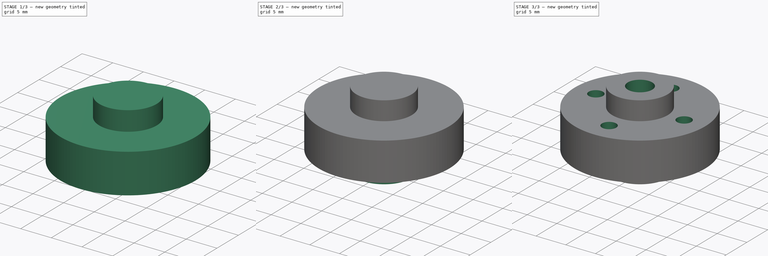
[diagram: build sequence overview — one tinted view per stage of 3, left to right]
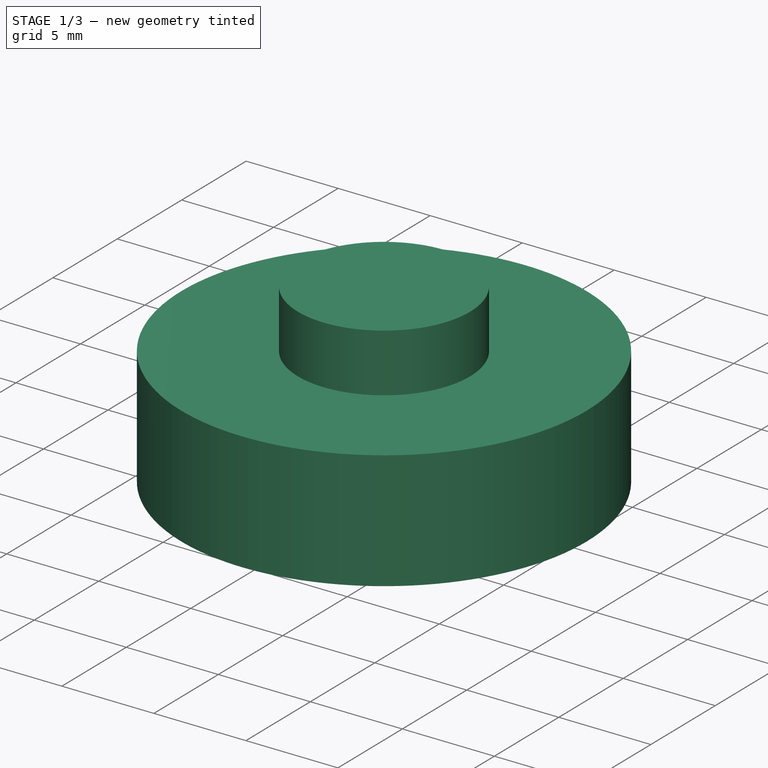
[diagram: stage 1 of 3 — iso view after this stage's code; geometry added in this stage tinted green]
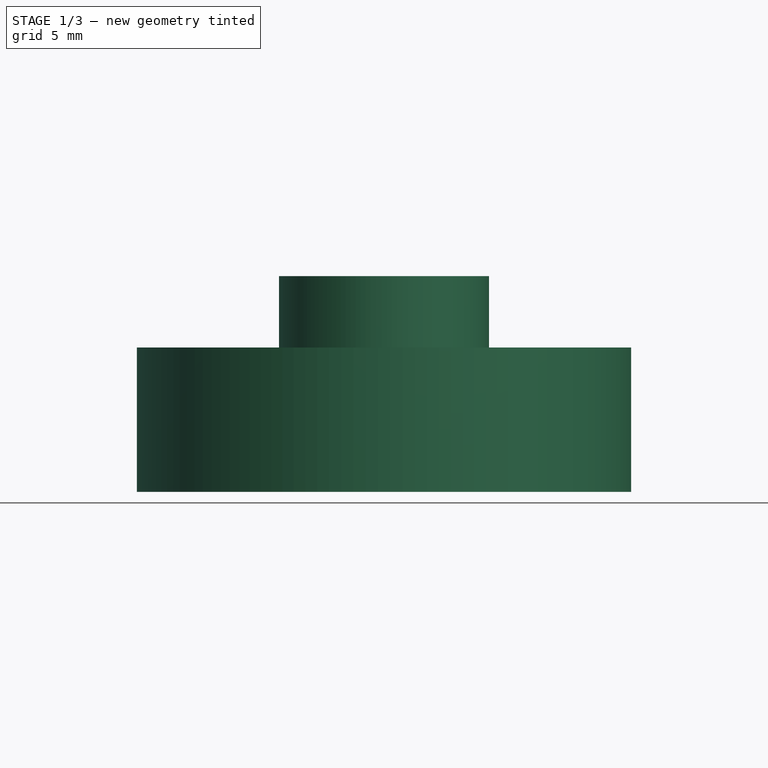
[diagram: stage 1 of 3 — front view after this stage's code; geometry added in this stage tinted green]
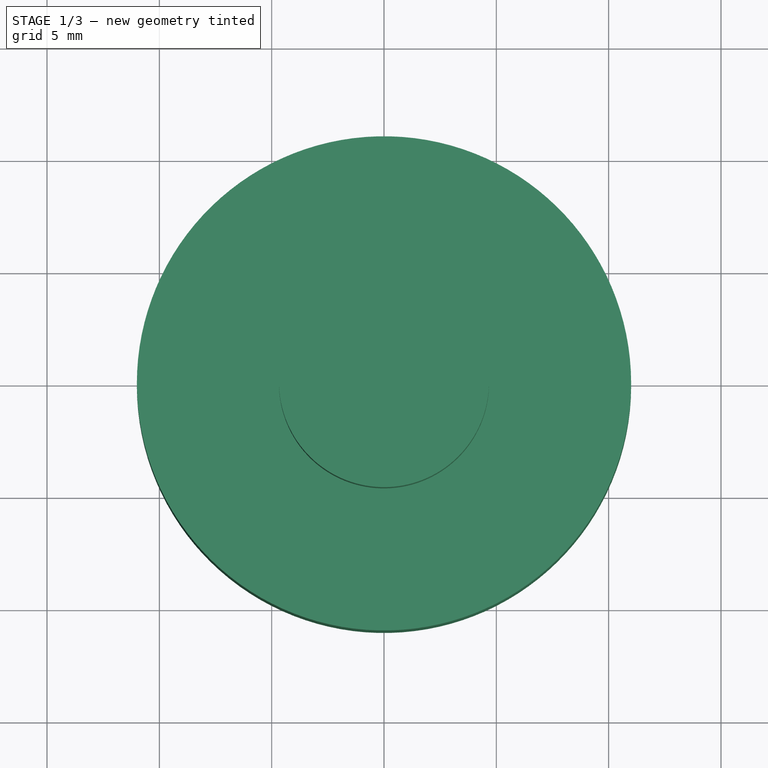
[diagram: stage 1 of 3 — top view after this stage's code; geometry added in this stage tinted green]
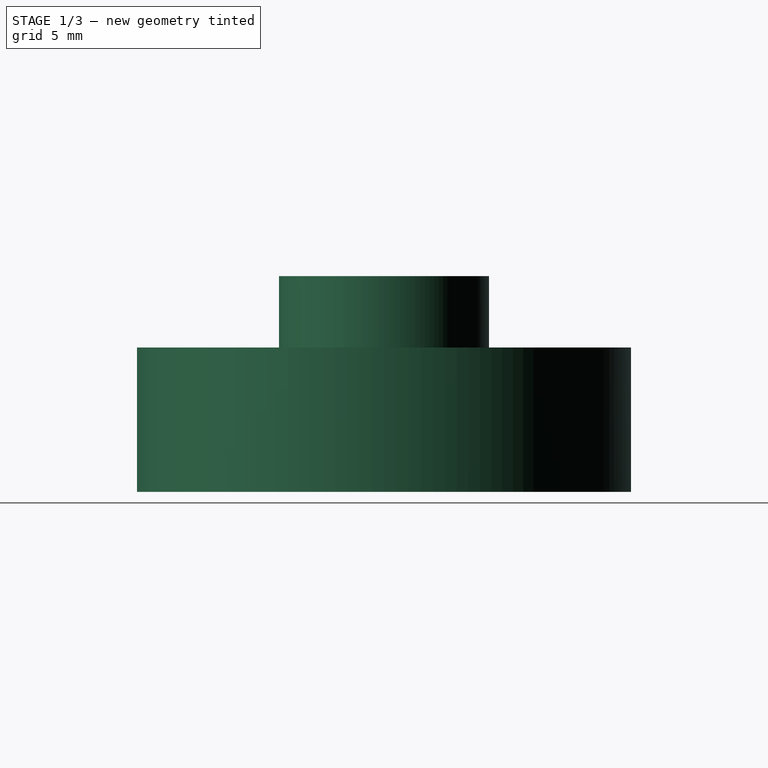
[diagram: stage 1 of 3 — right view after this stage's code; geometry added in this stage tinted green]
FCSTD DOCUMENT  (FreeCAD 0.15R4671 (Git))
Label: hub
License: All rights reserved
LicenseURL: http://en.wikipedia.org/wiki/All_rights_reserved
objects: Sketcher::SketchObject×5, PartDesign::Pad×3, PartDesign::Pocket×2
note: 15 computed .brp shape members not serialized (recipe doc carries the construction recipe); baked Part::Feature solids carry a one-line shape summary decoded from their .brp

FEATURE [Sketcher::SketchObject] Sketch
  sketch-geometry (1):
    g0: Circle CenterX=0 CenterY=0 CenterZ=0 NormalX=0 NormalY=0 NormalZ=1 Radius=11.0007
  constraints (2):
    c: Coincident(g0,g-1)
    c: Radius(g0) = 11.0007
FEATURE [PartDesign::Pad] Pad
  Length = 6.4262
  Length2 = 100
  Sketch = -> Sketch
  Type = 0
FEATURE [Sketcher::SketchObject] Sketch001
  Placement = pos=(0,0,6.4262) rot=(0,0,1;0rad)
  Support = -> Pad [Face3]
  sketch-geometry (1):
    g0: Circle CenterX=0 CenterY=0 CenterZ=0 NormalX=0 NormalY=0 NormalZ=1 Radius=4.67614
  constraints (2):
    c: Coincident(g0,g-1)
    c: Radius(g0) = 4.67614
FEATURE [PartDesign::Pad] Pad001
  Length = 3.175
  Length2 = 100
  Sketch = -> Sketch001
  Type = 0
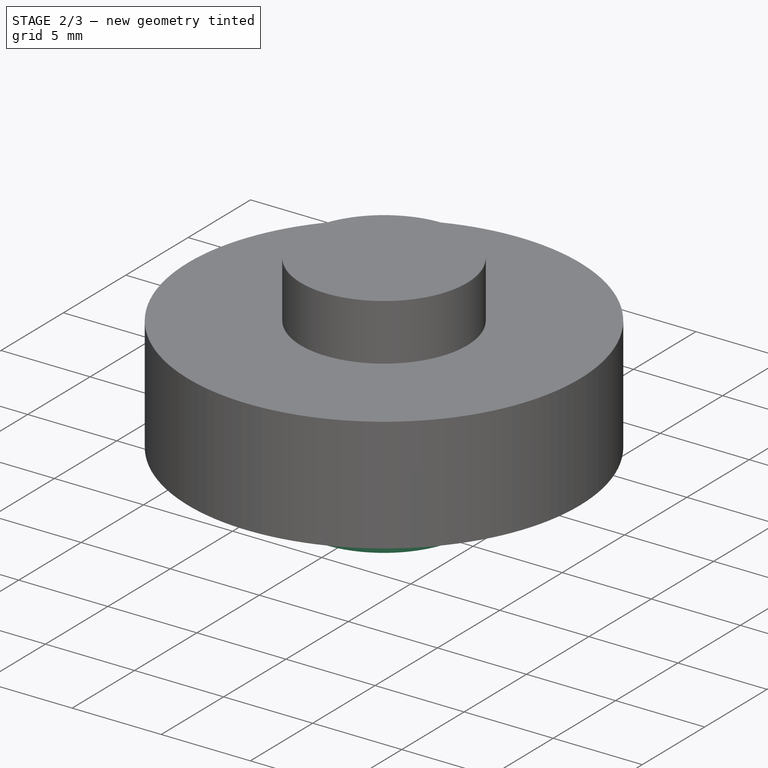
[diagram: stage 2 of 3 — iso view after this stage's code; geometry added in this stage tinted green]
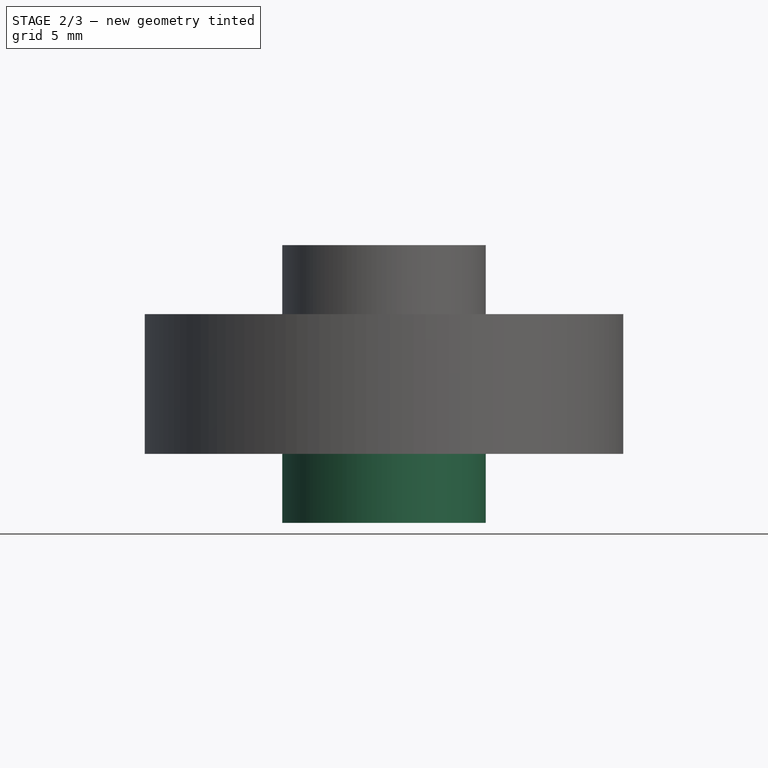
[diagram: stage 2 of 3 — front view after this stage's code; geometry added in this stage tinted green]
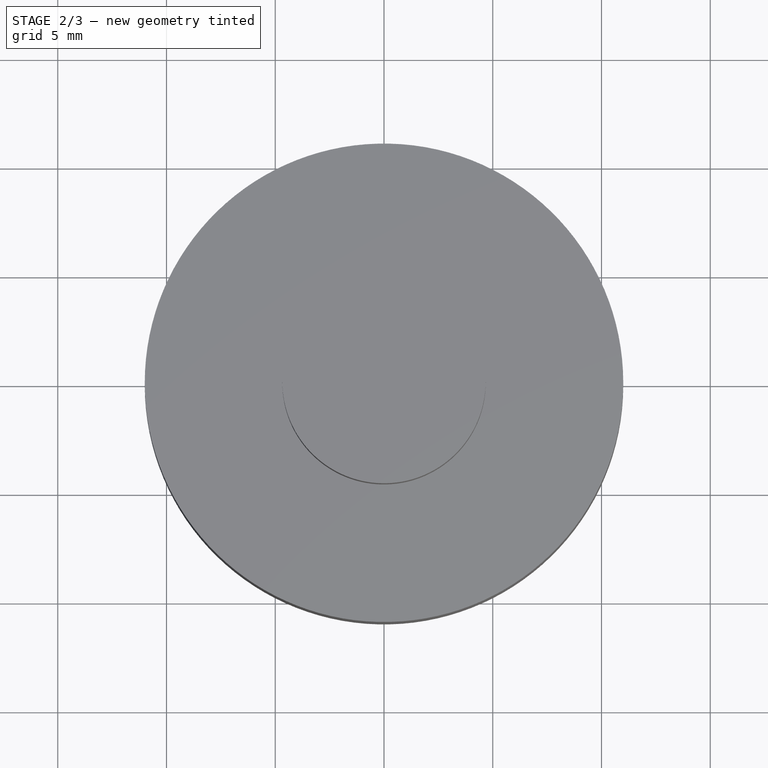
[diagram: stage 2 of 3 — top view after this stage's code; geometry added in this stage tinted green]
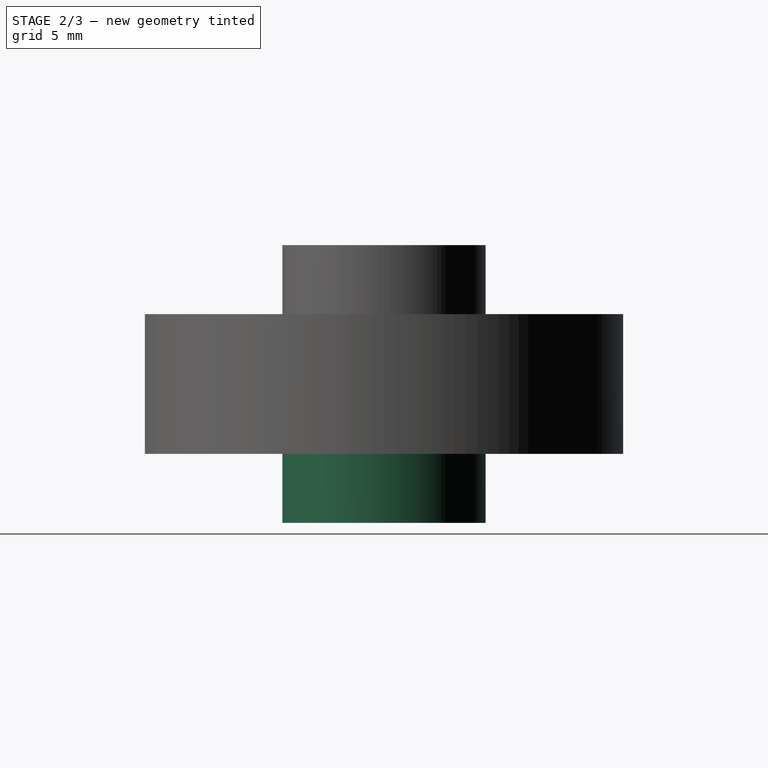
[diagram: stage 2 of 3 — right view after this stage's code; geometry added in this stage tinted green]
FEATURE [Sketcher::SketchObject] Sketch002
  Placement = pos=(0,0,0) rot=(1,0,0;3.14159rad)
  Support = -> Pad001 [Face2]
  sketch-geometry (1):
    g0: Circle CenterX=0 CenterY=0 CenterZ=0 NormalX=0 NormalY=0 NormalZ=1 Radius=4.67614
  constraints (2):
    c: Coincident(g0,g-1)
    c: Radius(g0) = 4.67614
FEATURE [PartDesign::Pad] Pad002
  Length = 3.175
  Length2 = 100
  Sketch = -> Sketch002
  Type = 0
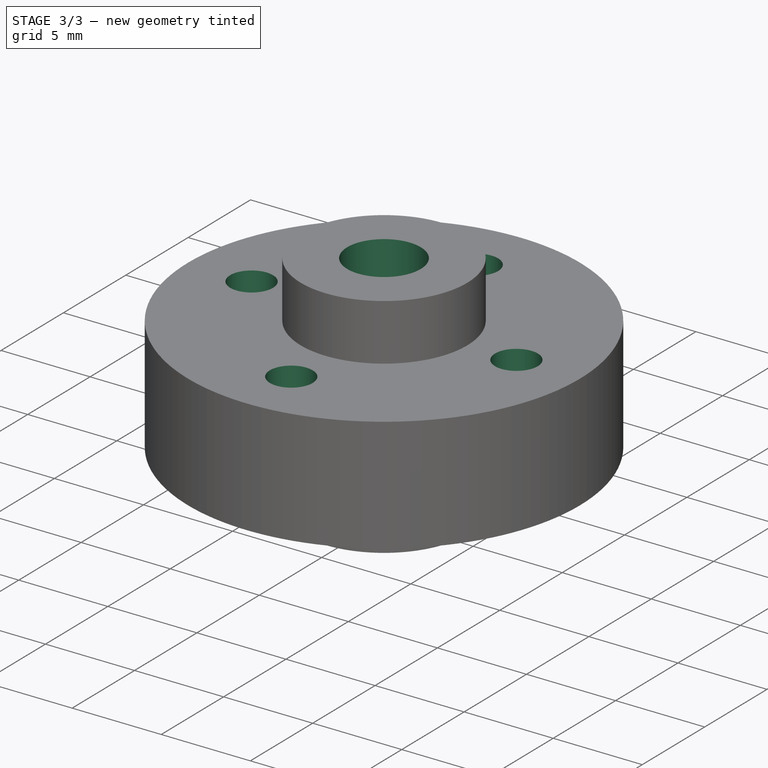
[diagram: stage 3 of 3 — iso view after this stage's code; geometry added in this stage tinted green]
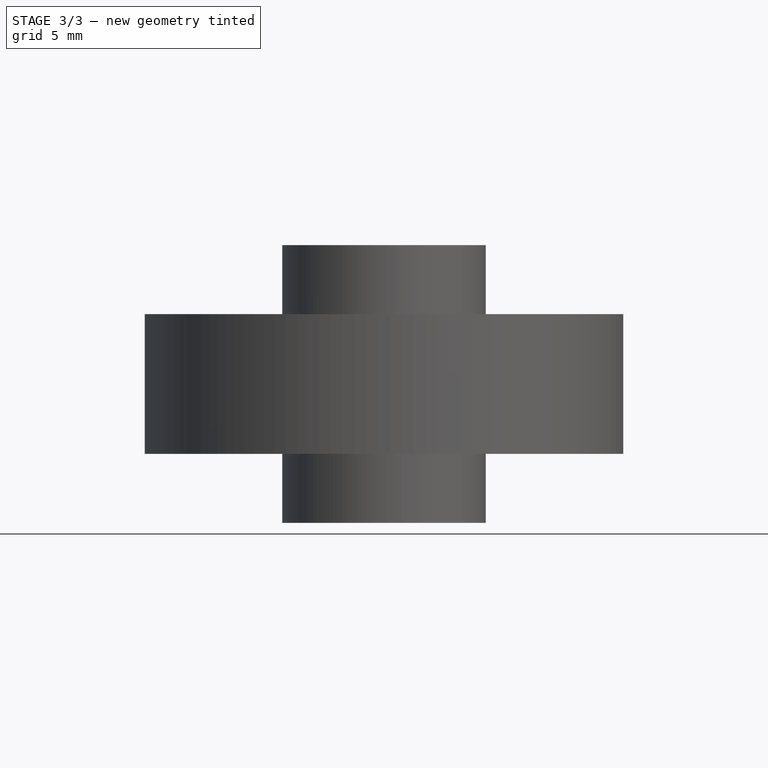
[diagram: stage 3 of 3 — front view after this stage's code; geometry added in this stage tinted green]
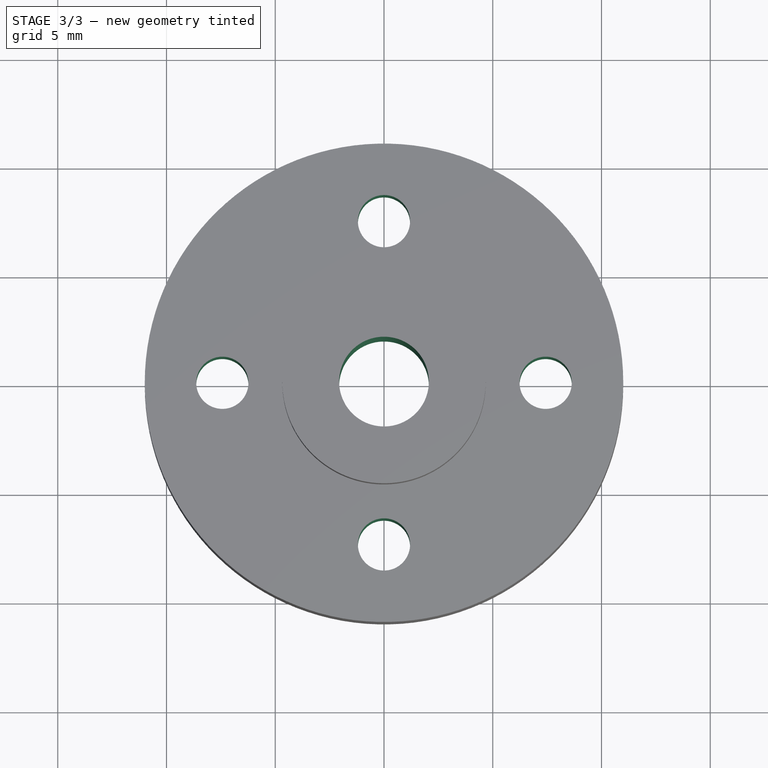
[diagram: stage 3 of 3 — top view after this stage's code; geometry added in this stage tinted green]
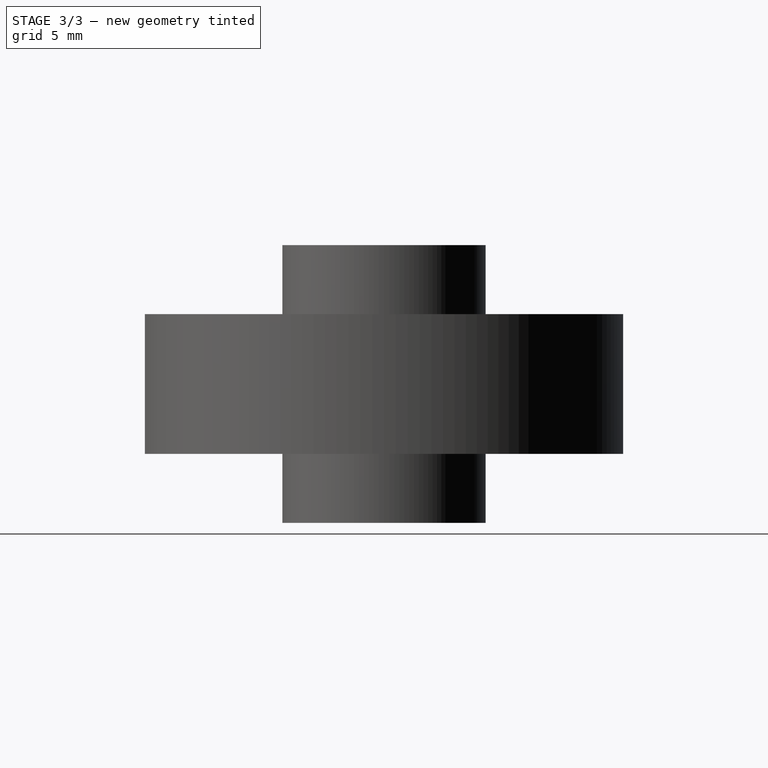
[diagram: stage 3 of 3 — right view after this stage's code; geometry added in this stage tinted green]
FEATURE [Sketcher::SketchObject] Sketch003
  Placement = pos=(0,0,-3.175) rot=(1,0,0;3.14159rad)
  Support = -> Pad002 [Face6]
  sketch-geometry (1):
    g0: Circle CenterX=0 CenterY=0 CenterZ=0 NormalX=0 NormalY=0 NormalZ=1 Radius=2.06375
  constraints (2):
    c: Coincident(g0,g-1)
    c: Radius(g0) = 2.06375
FEATURE [PartDesign::Pocket] Pocket
  Length = 4.99999
  Sketch = -> Sketch003
  Type = 1
FEATURE [Sketcher::SketchObject] Sketch004
  Placement = pos=(0,0,0) rot=(1,0,0;3.14159rad)
  Support = -> Pocket [Face2]
  sketch-geometry (4):
    g0: Circle CenterX=7.43331 CenterY=0 CenterZ=0 NormalX=0 NormalY=0 NormalZ=1 Radius=1.20015
    g1: Circle CenterX=0 CenterY=-7.43331 CenterZ=0 NormalX=0 NormalY=0 NormalZ=1 Radius=1.20015
    g2: Circle CenterX=0 CenterY=7.43331 CenterZ=0 NormalX=0 NormalY=0 NormalZ=1 Radius=1.20015
    g3: Circle CenterX=-7.43331 CenterY=0 CenterZ=0 NormalX=0 NormalY=0 NormalZ=1 Radius=1.20015
  constraints (12):
    c: Radius(g1) = 1.20015
    c: Equal(g1,g3)
    c: Equal(g1,g2)
    c: Equal(g1,g0)
    c: DistanceX(g-1,g2) = 0
    c: DistanceX(g-1,g1) = 0
    c: DistanceY(g-1,g0) = 0
    c: DistanceY(g-1,g3) = 0
    c: DistanceX(g-1,g0) = 7.43331
    c: DistanceX(g-1,g3) = -7.43331
    c: DistanceY(g-1,g2) = 7.43331
    c: DistanceY(g-1,g1) = -7.43331
FEATURE [PartDesign::Pocket] Pocket001
  Length = 4.99999
  Sketch = -> Sketch004
  Type = 1
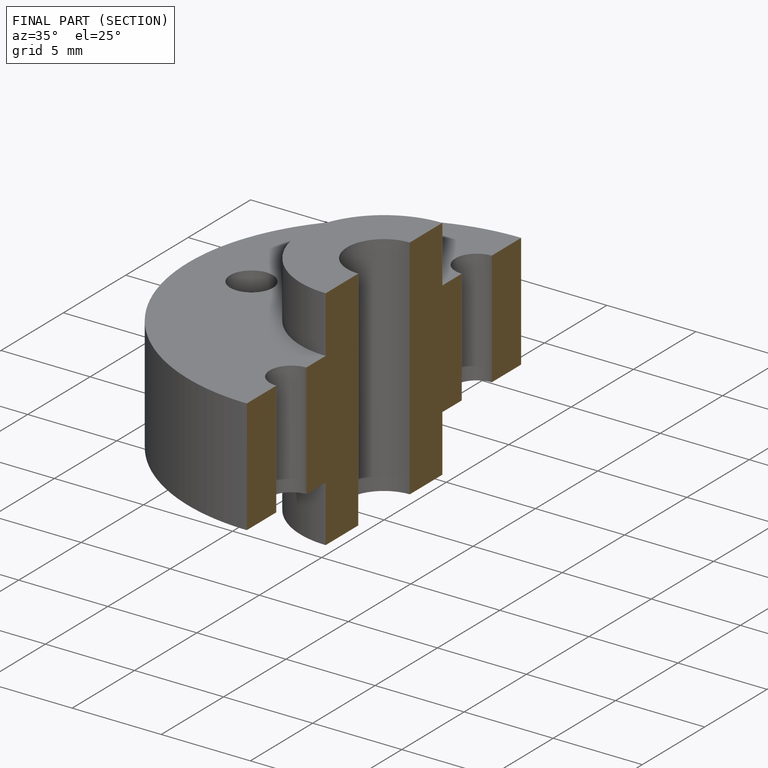
[diagram: finished part — half-section view (interior)]
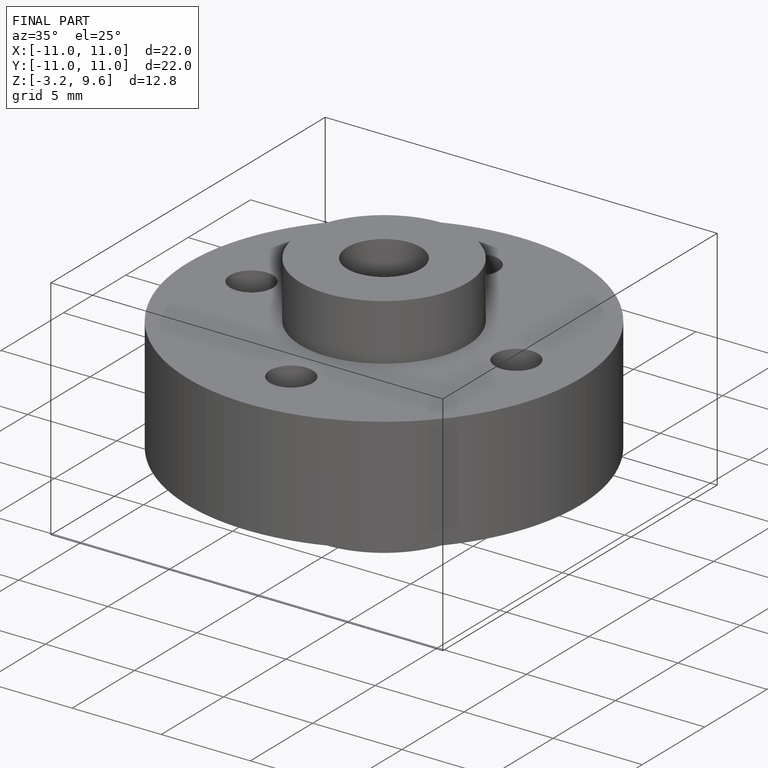
[diagram: finished part — iso view with bounding-box wireframe]
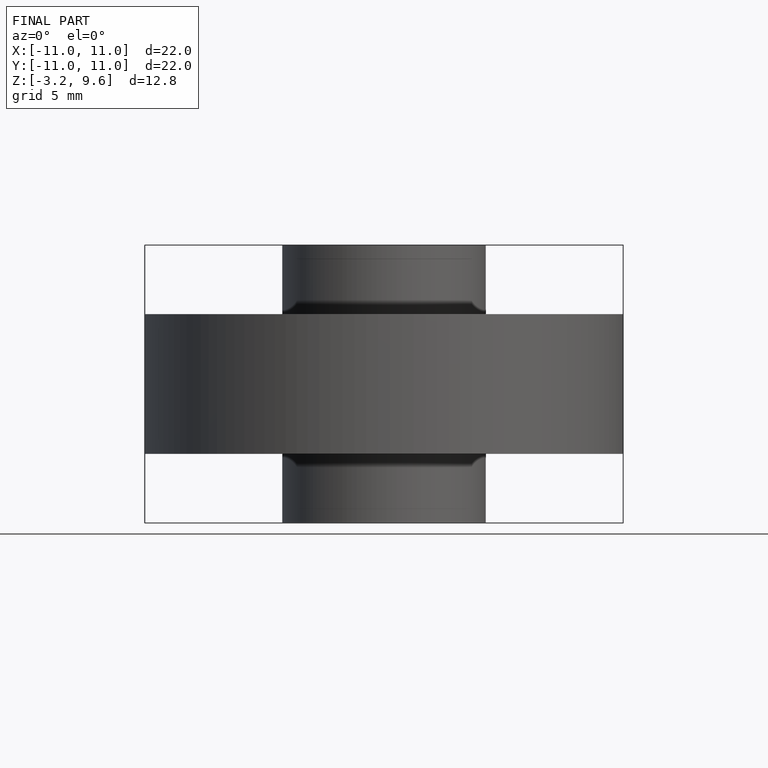
[diagram: finished part — front view with bounding-box wireframe]
